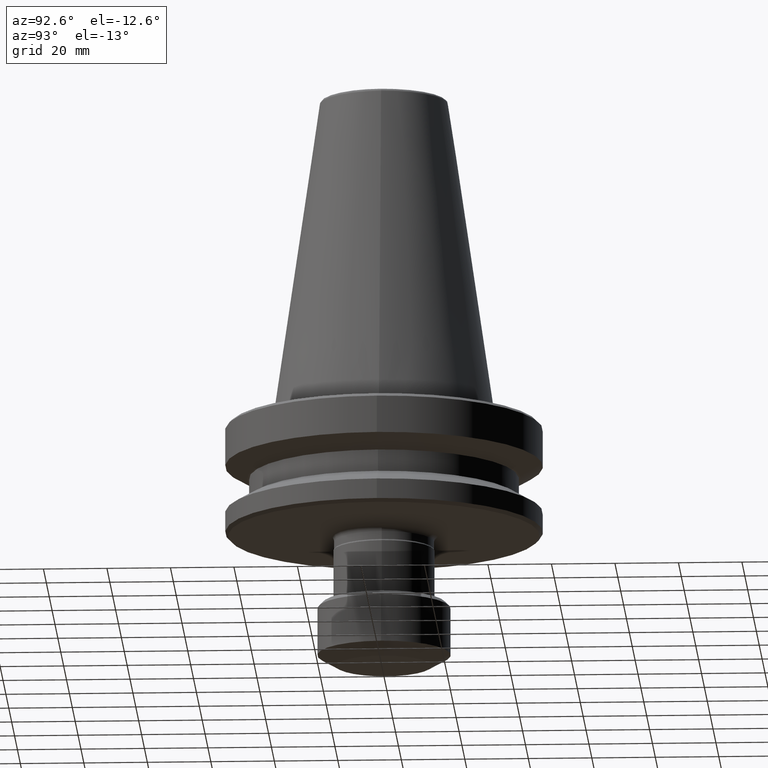
[diagram: clean part render]
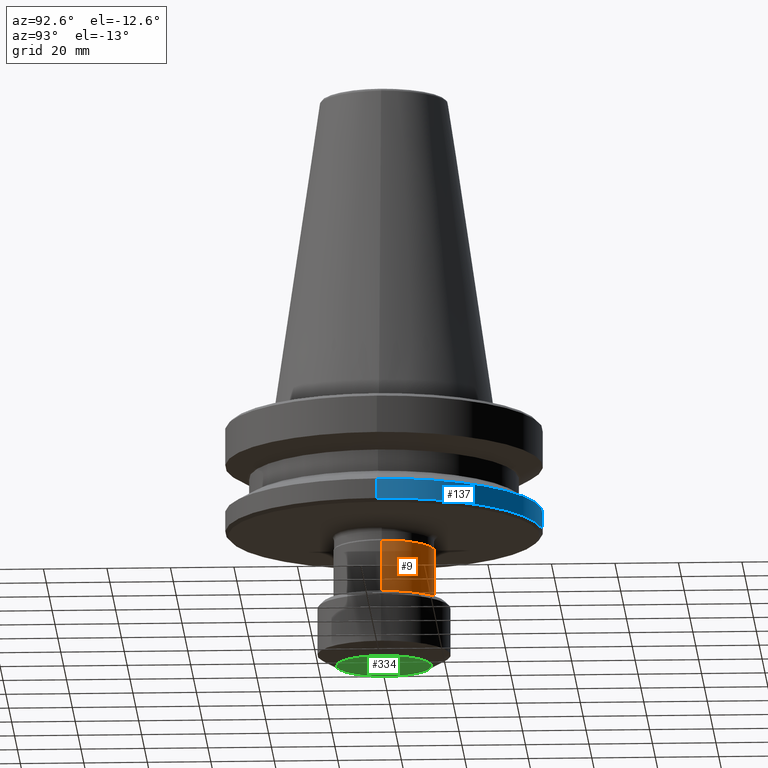
[diagram: same view with three faces highlighted in distinct colors, each labeled with its STEP entity id]
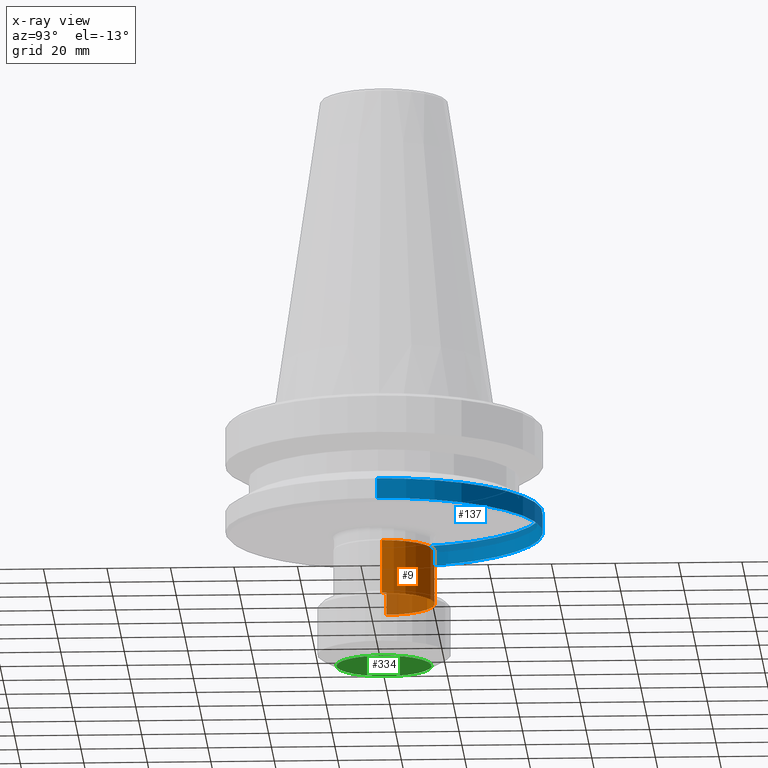
[diagram: x-ray of the same camera — body ghosted, the three highlighted faces saturated]
A machine part, auxiliary view with three faces highlighted in distinct colors.
The next image is the same camera in x-ray (body ghosted, the three faces saturated) — at least one of them is partly hidden behind the body in this view.
Their STEP definitions:

[orange] entity #9 — the highlighted cylindrical surface (partial cylindrical patch) has radius 15.95 mm, axis along (-0, -0, 1).
#9 = ADVANCED_FACE ( 'NONE', ( #405 ), #165, .T. ) ;
#24 = VERTEX_POINT ( 'NONE', #990 ) ;
#31 = CARTESIAN_POINT ( 'NONE',  ( 0.0000000000000000000, 0.0000000000000000000, -59.99625950816082600 ) ) ;
#35 = VERTEX_POINT ( 'NONE', #383 ) ;
#128 = EDGE_CURVE ( 'NONE', #991, #1105, #678, .T. ) ;
#165 = CYLINDRICAL_SURFACE ( 'NONE', #1038, 15.95000000000368300 ) ;
#192 = EDGE_CURVE ( 'NONE', #991, #35, #625, .T. ) ;
#193 = VECTOR ( 'NONE', #771, 1000.000000000000000 ) ;
#342 = CARTESIAN_POINT ( 'NONE',  ( 0.0000000000000000000, 0.0000000000000000000, 117.0068572025811700 ) ) ;
#344 = CARTESIAN_POINT ( 'NONE',  ( -15.95000000000368300, 1.953311644640479700E-015, -43.00000000000016300 ) ) ;
#383 = CARTESIAN_POINT ( 'NONE',  ( 15.95000000000368300, 0.0000000000000000000, -59.99625950816082600 ) ) ;
#403 = AXIS2_PLACEMENT_3D ( 'NONE', #1058, #489, #1147 ) ;
#405 = FACE_OUTER_BOUND ( 'NONE', #1167, .T. ) ;
#409 = VECTOR ( 'NONE', #1151, 1000.000000000000000 ) ;
#415 = CARTESIAN_POINT ( 'NONE',  ( -15.95000000000368300, 1.953311644640479700E-015, -59.99625950816082600 ) ) ;
#489 = DIRECTION ( 'NONE',  ( -0.0000000000000000000, -0.0000000000000000000, 1.000000000000000000 ) ) ;
#512 = AXIS2_PLACEMENT_3D ( 'NONE', #31, #1102, #868 ) ;
#564 = ORIENTED_EDGE ( 'NONE', *, *, #646, .F. ) ;
#616 = ORIENTED_EDGE ( 'NONE', *, *, #128, .T. ) ;
#625 = CIRCLE ( 'NONE', #512, 15.95000000000368300 ) ;
#646 = EDGE_CURVE ( 'NONE', #24, #1105, #816, .T. ) ;
#678 = LINE ( 'NONE', #883, #409 ) ;
#701 = LINE ( 'NONE', #1134, #193 ) ;
#771 = DIRECTION ( 'NONE',  ( -0.0000000000000000000, -0.0000000000000000000, 1.000000000000000000 ) ) ;
#787 = EDGE_CURVE ( 'NONE', #35, #24, #701, .T. ) ;
#794 = DIRECTION ( 'NONE',  ( 1.000000000000000000, 0.0000000000000000000, 0.0000000000000000000 ) ) ;
#816 = CIRCLE ( 'NONE', #403, 15.95000000000368300 ) ;
#868 = DIRECTION ( 'NONE',  ( -1.000000000000000000, 0.0000000000000000000, 0.0000000000000000000 ) ) ;
#869 = DIRECTION ( 'NONE',  ( -0.0000000000000000000, -0.0000000000000000000, 1.000000000000000000 ) ) ;
#883 = CARTESIAN_POINT ( 'NONE',  ( -15.95000000000368300, 1.953311644640479700E-015, 117.0068572025811700 ) ) ;
#920 = ORIENTED_EDGE ( 'NONE', *, *, #192, .F. ) ;
#990 = CARTESIAN_POINT ( 'NONE',  ( 15.95000000000368300, 0.0000000000000000000, -43.00000000000016300 ) ) ;
#991 = VERTEX_POINT ( 'NONE', #415 ) ;
#1038 = AXIS2_PLACEMENT_3D ( 'NONE', #342, #869, #794 ) ;
#1058 = CARTESIAN_POINT ( 'NONE',  ( 0.0000000000000000000, 0.0000000000000000000, -43.00000000000016300 ) ) ;
#1102 = DIRECTION ( 'NONE',  ( 0.0000000000000000000, 0.0000000000000000000, -1.000000000000000000 ) ) ;
#1105 = VERTEX_POINT ( 'NONE', #344 ) ;
#1134 = CARTESIAN_POINT ( 'NONE',  ( 15.95000000000368300, 0.0000000000000000000, 117.0068572025811700 ) ) ;
#1147 = DIRECTION ( 'NONE',  ( 1.000000000000000000, 0.0000000000000000000, 0.0000000000000000000 ) ) ;
#1151 = DIRECTION ( 'NONE',  ( -0.0000000000000000000, -0.0000000000000000000, 1.000000000000000000 ) ) ;
#1167 = EDGE_LOOP ( 'NONE', ( #920, #616, #564, #1172 ) ) ;
#1172 = ORIENTED_EDGE ( 'NONE', *, *, #787, .F. ) ;

[blue] entity #137 — the highlighted cylindrical surface (partial cylindrical patch) has radius 50 mm, axis along (-0, -0, 1).
#104 = CARTESIAN_POINT ( 'NONE',  ( 0.0000000000000000000, 0.0000000000000000000, 117.0068572025811700 ) ) ;
#116 = CIRCLE ( 'NONE', #810, 50.00000000000726200 ) ;
#126 = LINE ( 'NONE', #394, #1107 ) ;
#133 = ORIENTED_EDGE ( 'NONE', *, *, #242, .T. ) ;
#137 = ADVANCED_FACE ( 'NONE', ( #147 ), #1098, .T. ) ;
#140 = EDGE_LOOP ( 'NONE', ( #874, #133, #361, #1188 ) ) ;
#147 = FACE_OUTER_BOUND ( 'NONE', #140, .T. ) ;
#168 = EDGE_CURVE ( 'NONE', #433, #424, #116, .T. ) ;
#197 = DIRECTION ( 'NONE',  ( -0.0000000000000000000, -0.0000000000000000000, 1.000000000000000000 ) ) ;
#242 = EDGE_CURVE ( 'NONE', #424, #847, #513, .T. ) ;
#251 = AXIS2_PLACEMENT_3D ( 'NONE', #104, #498, #517 ) ;
#327 = CARTESIAN_POINT ( 'NONE',  ( 0.0000000000000000000, 0.0000000000000000000, -30.69977999677371700 ) ) ;
#361 = ORIENTED_EDGE ( 'NONE', *, *, #1029, .F. ) ;
#394 = CARTESIAN_POINT ( 'NONE',  ( 50.00000000000726200, 0.0000000000000000000, 117.0068572025811700 ) ) ;
#421 = DIRECTION ( 'NONE',  ( 1.000000000000000000, 0.0000000000000000000, 0.0000000000000000000 ) ) ;
#424 = VERTEX_POINT ( 'NONE', #537 ) ;
#433 = VERTEX_POINT ( 'NONE', #1095 ) ;
#445 = DIRECTION ( 'NONE',  ( 1.000000000000000000, 0.0000000000000000000, 0.0000000000000000000 ) ) ;
#490 = CIRCLE ( 'NONE', #1030, 50.00000000000726200 ) ;
#498 = DIRECTION ( 'NONE',  ( -0.0000000000000000000, -0.0000000000000000000, 1.000000000000000000 ) ) ;
#513 = LINE ( 'NONE', #1015, #982 ) ;
#515 = CARTESIAN_POINT ( 'NONE',  ( 50.00000000000726200, 0.0000000000000000000, -30.69977999677371700 ) ) ;
#517 = DIRECTION ( 'NONE',  ( 1.000000000000000000, 0.0000000000000000000, 0.0000000000000000000 ) ) ;
#537 = CARTESIAN_POINT ( 'NONE',  ( -50.00000000000726200, 6.123233995737654300E-015, -37.00000000000071100 ) ) ;
#675 = CARTESIAN_POINT ( 'NONE',  ( -50.00000000000726200, 6.123233995737655100E-015, -30.69977999677371700 ) ) ;
#789 = DIRECTION ( 'NONE',  ( -0.0000000000000000000, -0.0000000000000000000, 1.000000000000000000 ) ) ;
#810 = AXIS2_PLACEMENT_3D ( 'NONE', #987, #789, #445 ) ;
#827 = EDGE_CURVE ( 'NONE', #433, #1004, #126, .T. ) ;
#847 = VERTEX_POINT ( 'NONE', #675 ) ;
#874 = ORIENTED_EDGE ( 'NONE', *, *, #168, .T. ) ;
#982 = VECTOR ( 'NONE', #1204, 1000.000000000000000 ) ;
#985 = DIRECTION ( 'NONE',  ( -0.0000000000000000000, -0.0000000000000000000, 1.000000000000000000 ) ) ;
#987 = CARTESIAN_POINT ( 'NONE',  ( 0.0000000000000000000, 0.0000000000000000000, -37.00000000000071100 ) ) ;
#1004 = VERTEX_POINT ( 'NONE', #515 ) ;
#1015 = CARTESIAN_POINT ( 'NONE',  ( -50.00000000000726200, 6.123233995737655100E-015, 117.0068572025811700 ) ) ;
#1029 = EDGE_CURVE ( 'NONE', #1004, #847, #490, .T. ) ;
#1030 = AXIS2_PLACEMENT_3D ( 'NONE', #327, #985, #421 ) ;
#1095 = CARTESIAN_POINT ( 'NONE',  ( 50.00000000000726200, 0.0000000000000000000, -37.00000000000071100 ) ) ;
#1098 = CYLINDRICAL_SURFACE ( 'NONE', #251, 50.00000000000726200 ) ;
#1107 = VECTOR ( 'NONE', #197, 1000.000000000000000 ) ;
#1188 = ORIENTED_EDGE ( 'NONE', *, *, #827, .F. ) ;
#1204 = DIRECTION ( 'NONE',  ( -0.0000000000000000000, -0.0000000000000000000, 1.000000000000000000 ) ) ;

[green] entity #334 — the highlighted planar face has unit normal (0, -0, 1).
#17 = DIRECTION ( 'NONE',  ( 0.0000000000000000000, -0.0000000000000000000, 1.000000000000000000 ) ) ;
#56 = AXIS2_PLACEMENT_3D ( 'NONE', #1060, #17, #700 ) ;
#121 = CARTESIAN_POINT ( 'NONE',  ( 0.0000000000000000000, 0.0000000000000000000, -79.99625950818911200 ) ) ;
#124 = VERTEX_POINT ( 'NONE', #1000 ) ;
#153 = ORIENTED_EDGE ( 'NONE', *, *, #975, .F. ) ;
#167 = AXIS2_PLACEMENT_3D ( 'NONE', #835, #261, #927 ) ;
#225 = DIRECTION ( 'NONE',  ( 1.000000000000000000, 0.0000000000000000000, 0.0000000000000000000 ) ) ;
#255 = CIRCLE ( 'NONE', #167, 15.00000000000000000 ) ;
#261 = DIRECTION ( 'NONE',  ( -0.0000000000000000000, -0.0000000000000000000, 1.000000000000000000 ) ) ;
#334 = ADVANCED_FACE ( 'NONE', ( #853 ), #722, .F. ) ;
#439 = ORIENTED_EDGE ( 'NONE', *, *, #1207, .F. ) ;
#527 = CIRCLE ( 'NONE', #536, 15.00000000000000000 ) ;
#536 = AXIS2_PLACEMENT_3D ( 'NONE', #121, #799, #225 ) ;
#695 = CARTESIAN_POINT ( 'NONE',  ( 15.00000000000000000, 0.0000000000000000000, -79.99625950818911200 ) ) ;
#700 = DIRECTION ( 'NONE',  ( 1.000000000000000000, 0.0000000000000000000, 0.0000000000000000000 ) ) ;
#722 = PLANE ( 'NONE',  #56 ) ;
#799 = DIRECTION ( 'NONE',  ( -0.0000000000000000000, -0.0000000000000000000, 1.000000000000000000 ) ) ;
#835 = CARTESIAN_POINT ( 'NONE',  ( 0.0000000000000000000, 0.0000000000000000000, -79.99625950818911200 ) ) ;
#836 = EDGE_LOOP ( 'NONE', ( #153, #439 ) ) ;
#853 = FACE_OUTER_BOUND ( 'NONE', #836, .T. ) ;
#927 = DIRECTION ( 'NONE',  ( 1.000000000000000000, 0.0000000000000000000, 0.0000000000000000000 ) ) ;
#956 = VERTEX_POINT ( 'NONE', #695 ) ;
#975 = EDGE_CURVE ( 'NONE', #956, #124, #527, .T. ) ;
#1000 = CARTESIAN_POINT ( 'NONE',  ( -15.00000000000000000, 2.204364238464230800E-015, -79.99625950818911200 ) ) ;
#1060 = CARTESIAN_POINT ( 'NONE',  ( 0.0000000000000000000, 0.0000000000000000000, -79.99625950818911200 ) ) ;
#1207 = EDGE_CURVE ( 'NONE', #124, #956, #255, .T. ) ;